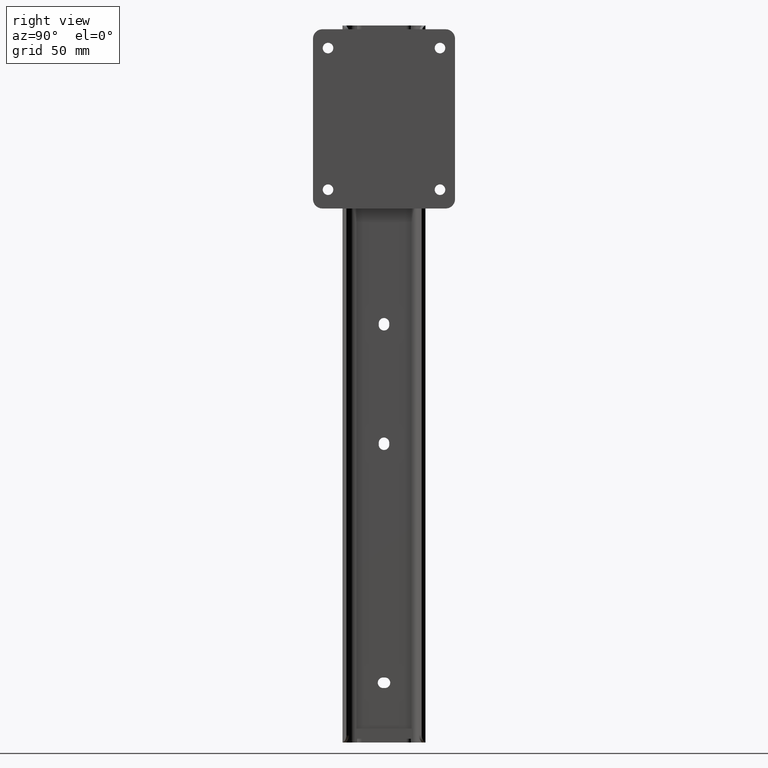
[diagram: clean part render]
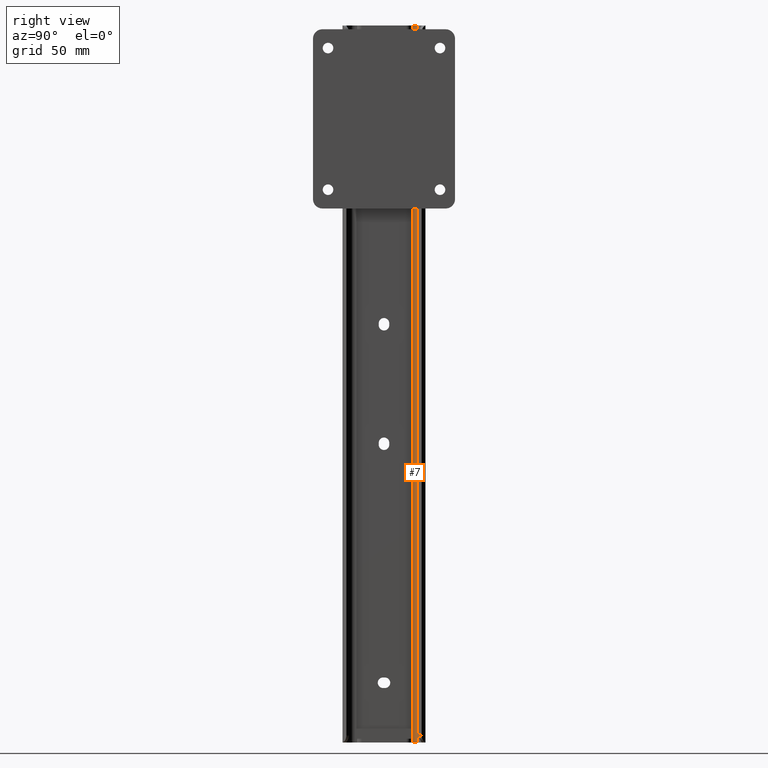
[diagram: same view with one face highlighted and labeled with its STEP entity id]
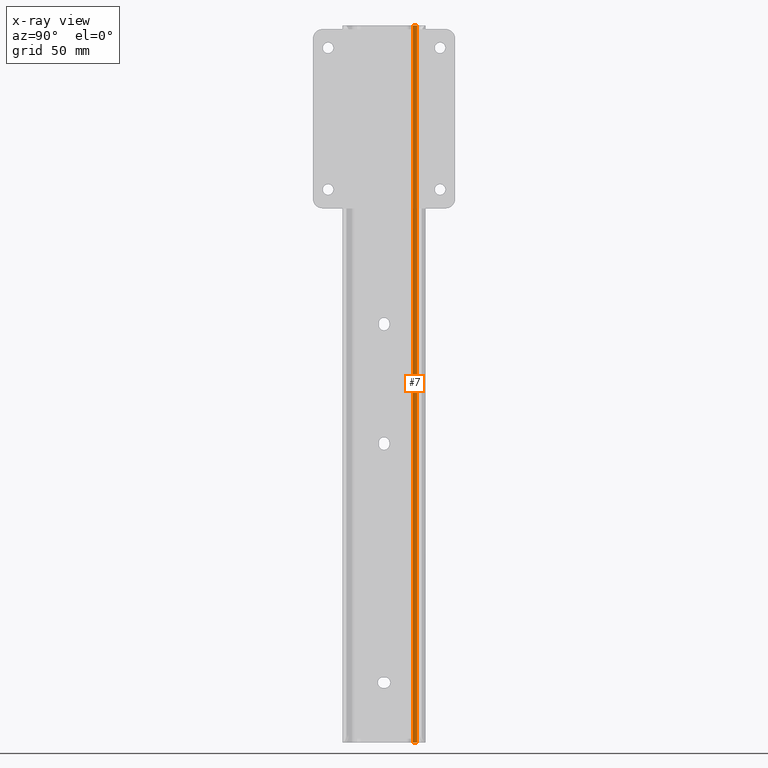
[diagram: x-ray of the same camera — body ghosted, the highlighted face saturated]
A machine part, right view. The second image highlights one B-rep face of the part: STEP entity #7.
The next image is the same camera in x-ray: the body ghosted, the highlighted face saturated — about 0% of this face is hidden behind the body in this view.
In plain terms, the highlighted cylindrical surface (edge-blend (fillet) strip) has radius 2.4 mm, axis along (0, 0, 1).
Its self-contained STEP definition (entity closure, byte-faithful):
#7 = ADVANCED_FACE ( 'NONE', ( #3335 ), #1288, .F. ) ;
#68 = ORIENTED_EDGE ( 'NONE', *, *, #1459, .F. ) ;
#108 = CARTESIAN_POINT ( 'NONE',  ( 4.000000000000100364, 12.34171572921633597, -304.8000000000000114 ) ) ;
#235 = DIRECTION ( 'NONE',  ( -0.0000000000000000000, -0.0000000000000000000, -1.000000000000000000 ) ) ;
#541 = DIRECTION ( 'NONE',  ( 1.000000000000000000, 0.0000000000000000000, 0.0000000000000000000 ) ) ;
#592 = VERTEX_POINT ( 'NONE', #1777 ) ;
#748 = DIRECTION ( 'NONE',  ( 0.0000000000000000000, 0.0000000000000000000, 1.000000000000000000 ) ) ;
#847 = LINE ( 'NONE', #3102, #2687 ) ;
#950 = VECTOR ( 'NONE', #1314, 1000.000000000000000 ) ;
#963 = VERTEX_POINT ( 'NONE', #1073 ) ;
#1073 = CARTESIAN_POINT ( 'NONE',  ( 1.600000000000080469, 12.34171572921639104, 0.0000000000000000000 ) ) ;
#1158 = CARTESIAN_POINT ( 'NONE',  ( 2.302943725152356791, 14.03877200406405557, -304.8000000000000114 ) ) ;
#1285 = EDGE_CURVE ( 'NONE', #2823, #1734, #2213, .T. ) ;
#1288 = CYLINDRICAL_SURFACE ( 'NONE', #3522, 2.400000000000025224 ) ;
#1314 = DIRECTION ( 'NONE',  ( 0.0000000000000000000, 0.0000000000000000000, 1.000000000000000000 ) ) ;
#1405 = DIRECTION ( 'NONE',  ( 1.000000000000000000, 0.0000000000000000000, 0.0000000000000000000 ) ) ;
#1448 = DIRECTION ( 'NONE',  ( 0.0000000000000000000, 0.0000000000000000000, 1.000000000000000000 ) ) ;
#1459 = EDGE_CURVE ( 'NONE', #963, #1734, #3296, .T. ) ;
#1634 = CARTESIAN_POINT ( 'NONE',  ( 2.302943725152356791, 14.03877200406405557, 0.0000000000000000000 ) ) ;
#1734 = VERTEX_POINT ( 'NONE', #1634 ) ;
#1777 = CARTESIAN_POINT ( 'NONE',  ( 1.600000000000080469, 12.34171572921639104, -304.8000000000000114 ) ) ;
#1882 = ORIENTED_EDGE ( 'NONE', *, *, #1285, .T. ) ;
#1902 = DIRECTION ( 'NONE',  ( 1.000000000000000000, 0.0000000000000000000, 0.0000000000000000000 ) ) ;
#1945 = EDGE_CURVE ( 'NONE', #592, #963, #847, .T. ) ;
#2213 = LINE ( 'NONE', #2775, #950 ) ;
#2546 = CARTESIAN_POINT ( 'NONE',  ( 4.000000000000100364, 12.34171572921633597, 0.0000000000000000000 ) ) ;
#2678 = ORIENTED_EDGE ( 'NONE', *, *, #1945, .F. ) ;
#2687 = VECTOR ( 'NONE', #1448, 1000.000000000000000 ) ;
#2775 = CARTESIAN_POINT ( 'NONE',  ( 2.302943725152356791, 14.03877200406405557, -304.8000000000000114 ) ) ;
#2818 = CARTESIAN_POINT ( 'NONE',  ( 4.000000000000100364, 12.34171572921633597, -304.8000000000000114 ) ) ;
#2823 = VERTEX_POINT ( 'NONE', #1158 ) ;
#2863 = DIRECTION ( 'NONE',  ( -0.0000000000000000000, -0.0000000000000000000, -1.000000000000000000 ) ) ;
#2991 = AXIS2_PLACEMENT_3D ( 'NONE', #2546, #2863, #1405 ) ;
#3102 = CARTESIAN_POINT ( 'NONE',  ( 1.600000000000080469, 12.34171572921639104, -304.8000000000000114 ) ) ;
#3105 = ORIENTED_EDGE ( 'NONE', *, *, #3733, .T. ) ;
#3162 = EDGE_LOOP ( 'NONE', ( #68, #2678, #3105, #1882 ) ) ;
#3296 = CIRCLE ( 'NONE', #2991, 2.400000000000025224 ) ;
#3335 = FACE_OUTER_BOUND ( 'NONE', #3162, .T. ) ;
#3522 = AXIS2_PLACEMENT_3D ( 'NONE', #108, #748, #1902 ) ;
#3663 = CIRCLE ( 'NONE', #3722, 2.400000000000025224 ) ;
#3722 = AXIS2_PLACEMENT_3D ( 'NONE', #2818, #235, #541 ) ;
#3733 = EDGE_CURVE ( 'NONE', #592, #2823, #3663, .T. ) ;